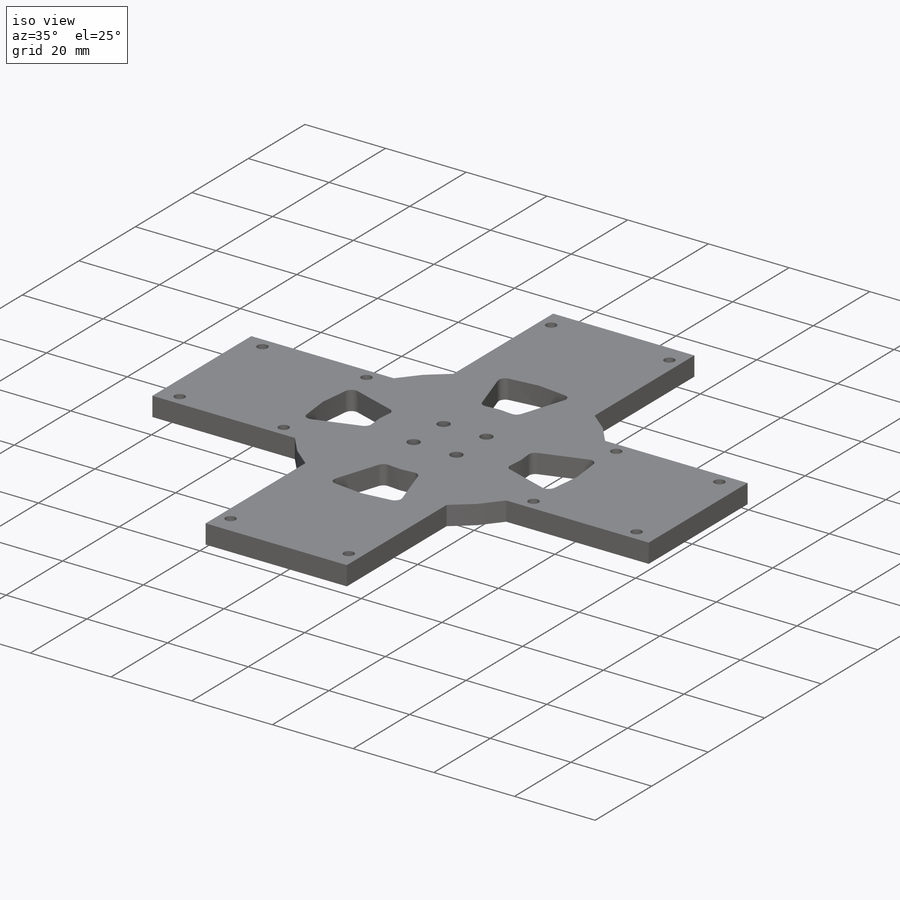
[diagram: iso view]
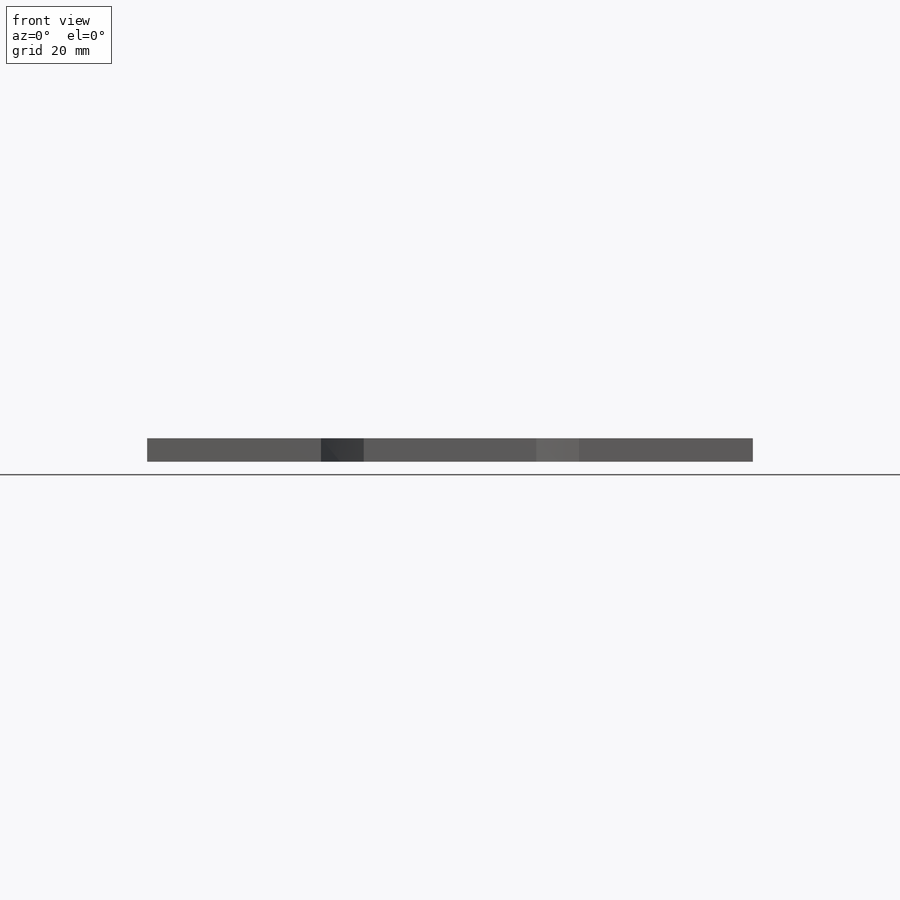
[diagram: front view]
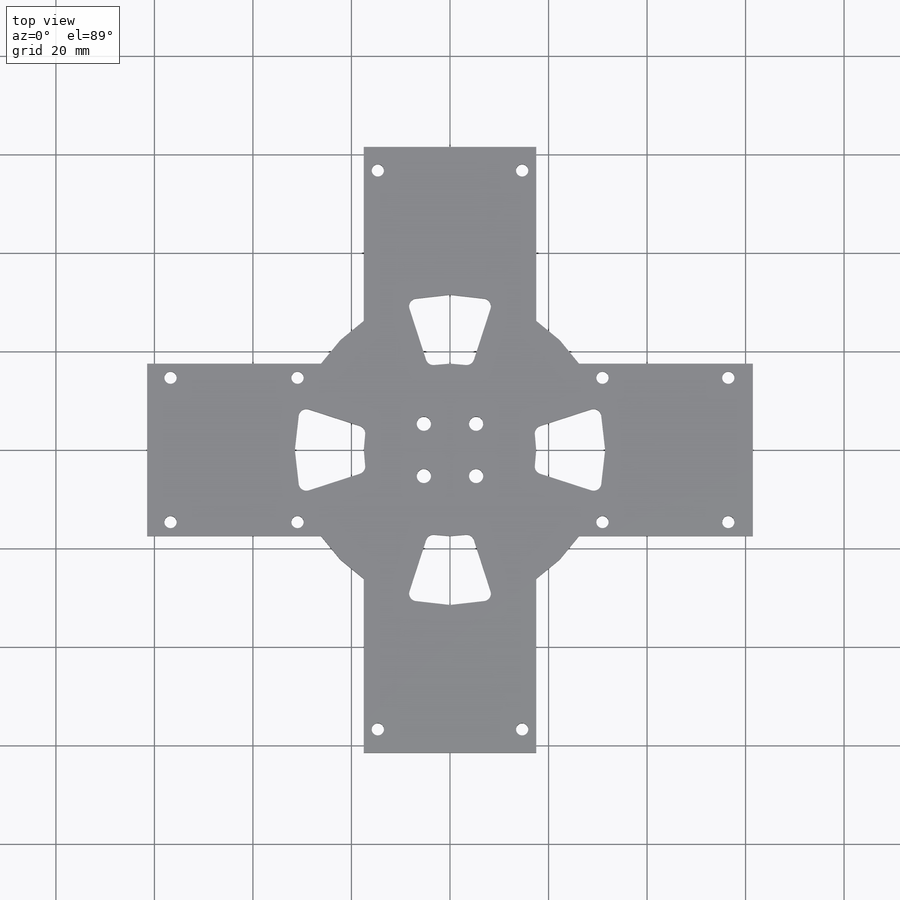
[diagram: top view]
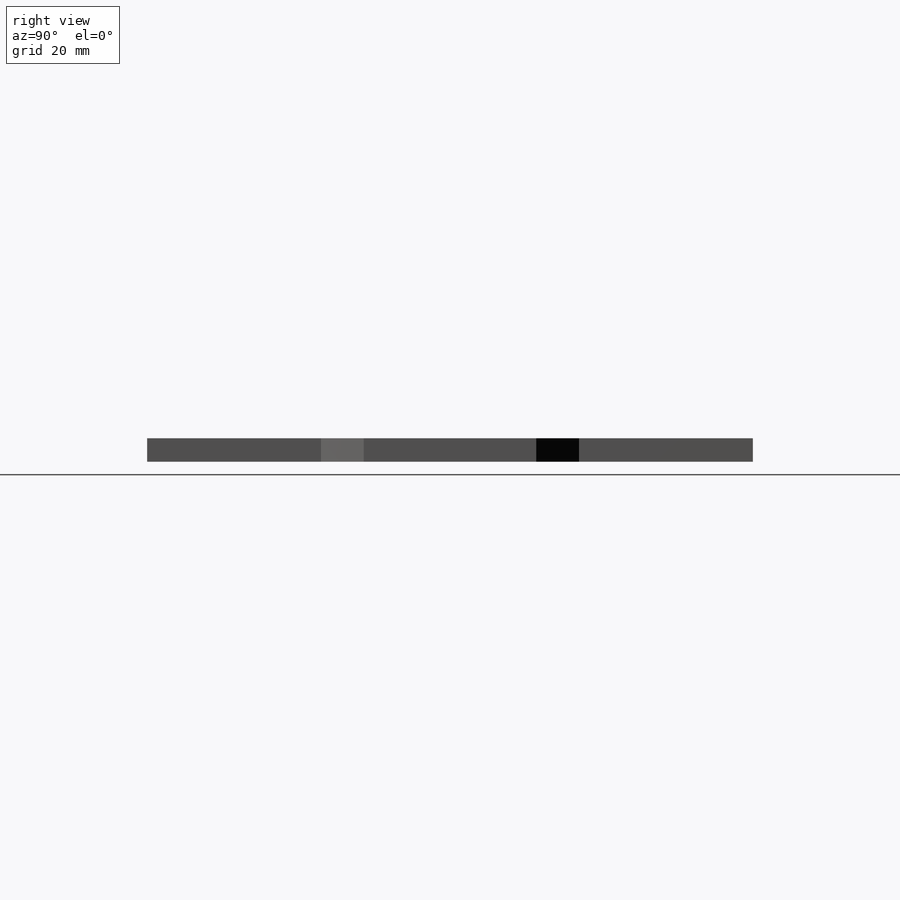
[diagram: right view]
SOLIDWORKS PART (.sldprt)
format: sldprt  version: not decoded by parser v0  size: 417,280 bytes
history: native  units: mm
features: sketch x5, hole x2, material x1, extrude x1 (+13 scaffold rows collapsed)
feature tree (22):
  scaffold x13  (default folders/planes/origin — collapsed)
  material  "6061-T6 (SS)"
  sketch  "Sketch1"  dims[c1.D1=~20.938237mm c1.D3=~11.765289mm c1.D9=~17.477994mm c1.D17=1.5875mm c1.D18=~4.82091mm c2.D1=15.0mm c2.D2=15.0mm c3.D1=10.0mm c3.D2=10.0mm c3.D3=2.5mm c3.D4=~3.336857mm c4.D4=90.0deg c5.D4=2.5mm c5.D5=2.5mm c5.D6=2.5mm c5.D3=30.0mm c6.D4=10.0mm c6.D5=10.0mm c6.D6=30.0mm c6.D7=30.0mm c6.D8=30.0mm c6.D9=17.5mm c6.D10=8.75mm c6.D11=17.5mm c6.D12=8.75mm c6.D13=17.5mm c6.D14=8.75mm c6.D15=17.5mm c6.D16=8.75mm c7.D4=10.0mm c7.D5=10.0mm]
  extrude  "Boss-Extrude1"  Depth=4.763mm
  hole  "M2.5 Clearance Hole1"  Diameter=2.9mm Depth=4.763mm
  sketch  "Sketch3"  dims[D1=7.5mm]
  sketch  "Sketch2"  dims[hole-wizard template sketch: 60 standard entries collapsed; hole parameters kept: c18.Thru Hole Depth=4.763mm]
  hole  "Tap Drill for M3x0.5 Tap1"  Diameter=2.5mm Depth=4.763mm
  sketch  "Sketch5"  dims[D1=9.525mm D2=9.525mm D3=9.525mm D4=9.525mm D5=2.85mm D6=4.7625mm D7=2.85mm D8=4.7625mm D9=4.7625mm D10=5.0mm D11=9.525mm D12=9.525mm D13=2.85mm D14=4.7625mm D15=2.85mm D16=4.7625mm D17=5.0mm]
  sketch  "Sketch4"  dims[hole-wizard template sketch: 60 standard entries collapsed; hole parameters kept: c18.Thru Hole Depth=4.763mm]
decode coverage: 8 of 8 modeling features carry decoded parameters
note: ~ marks probable driven/reference dimensions
note: suppression state not decoded; provenance and decode notes live in map.json
